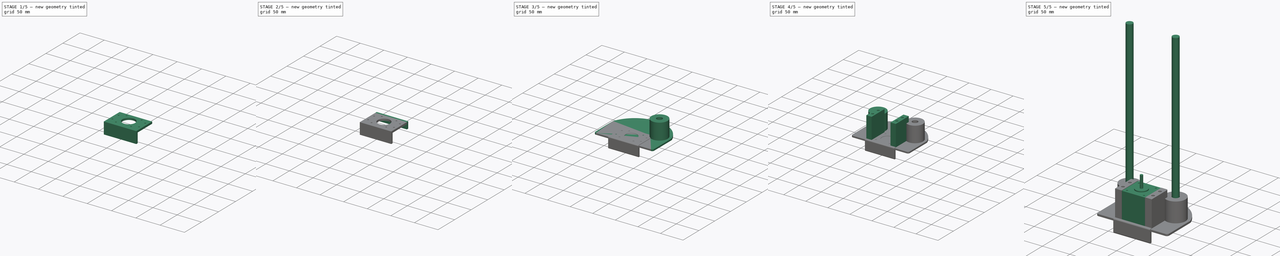
[diagram: build sequence overview — one tinted view per stage of 5, left to right]
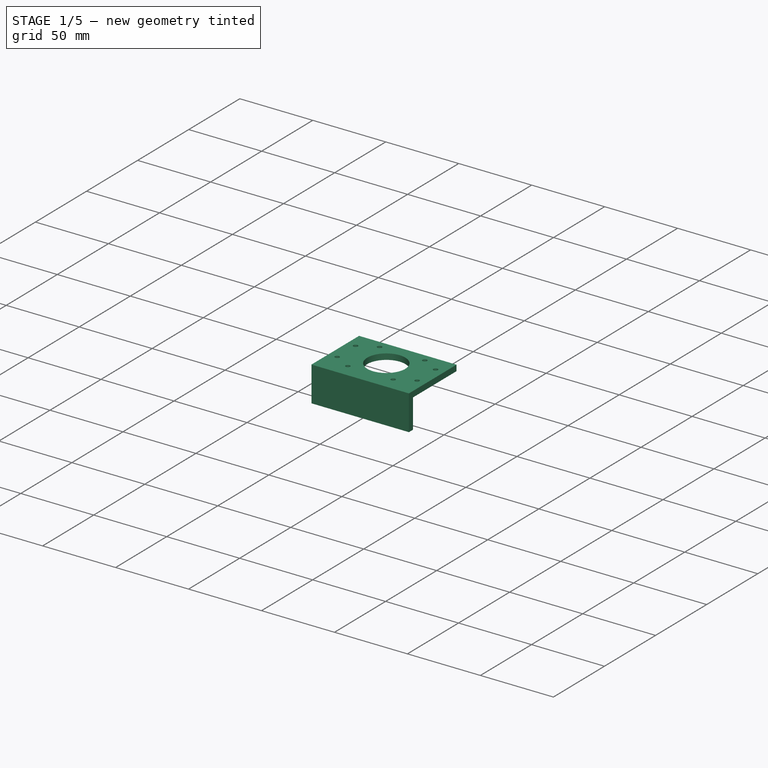
[diagram: stage 1 of 5 — iso view after this stage's code; geometry added in this stage tinted green]
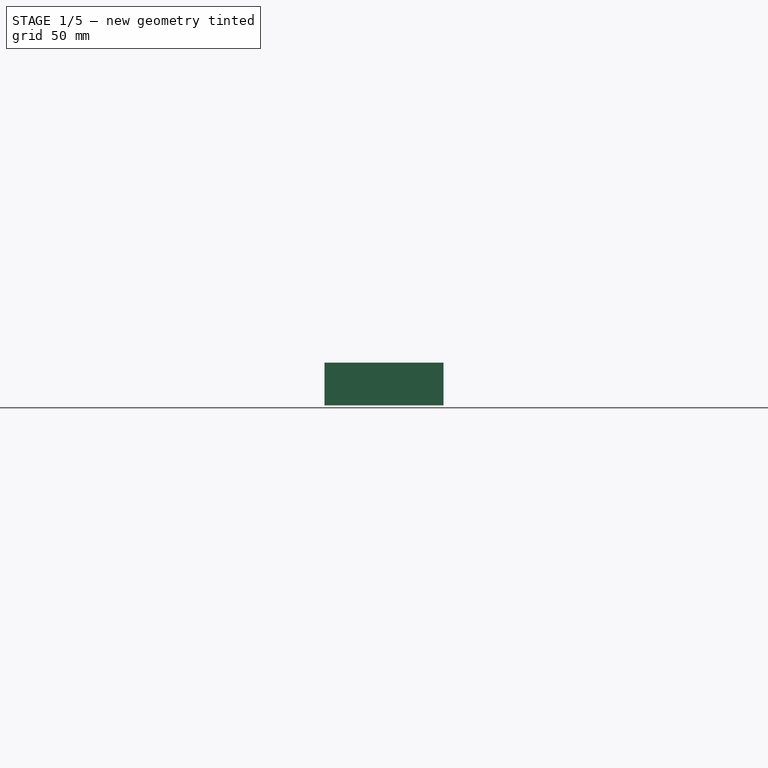
[diagram: stage 1 of 5 — front view after this stage's code; geometry added in this stage tinted green]
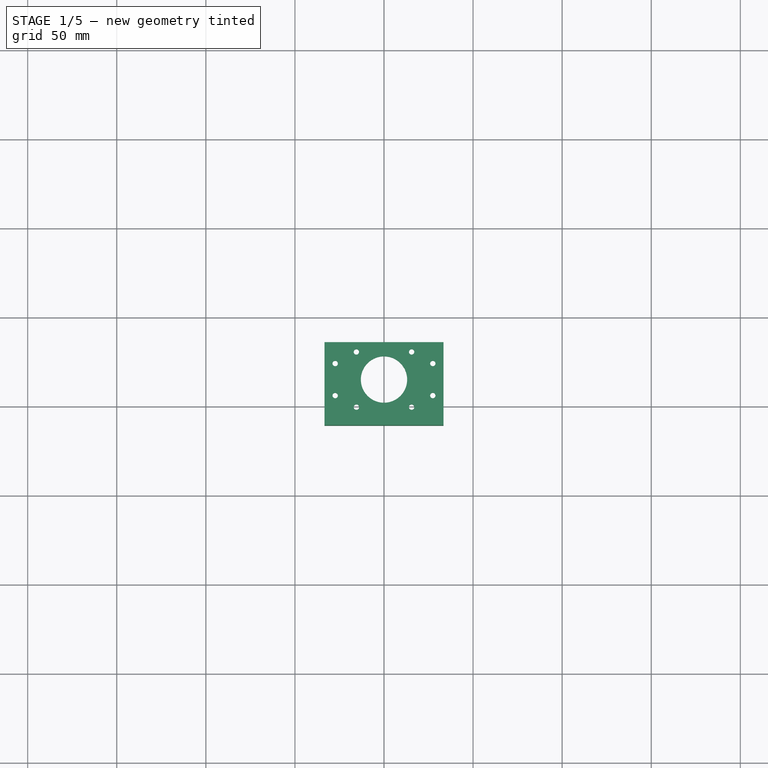
[diagram: stage 1 of 5 — top view after this stage's code; geometry added in this stage tinted green]
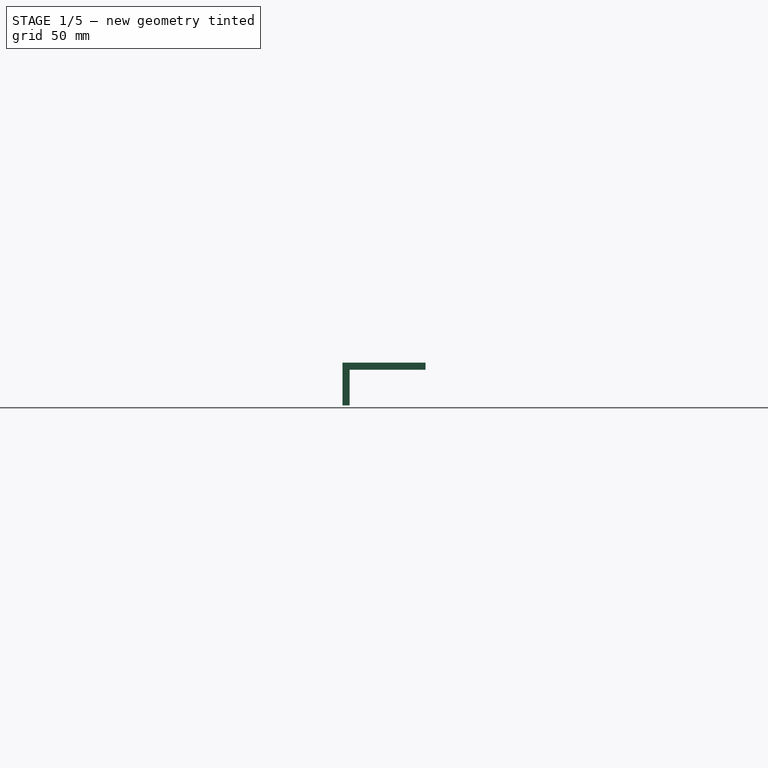
[diagram: stage 1 of 5 — right view after this stage's code; geometry added in this stage tinted green]
FCSTD DOCUMENT  (FreeCAD 0.18R16110 (Git))
Label: jSCARA-V1
License: All rights reserved
LicenseURL: http://en.wikipedia.org/wiki/All_rights_reserved
objects: PartDesign::Pad×10, Sketcher::SketchObject×4, PartDesign::Fillet×3, Part::Cylinder×2, PartDesign::Mirrored×2, PartDesign::Body×2, App::Part×2, Part::FeaturePython×1
note: 34 computed .brp shape members not serialized (recipe doc carries the construction recipe); baked Part::Feature solids carry a one-line shape summary decoded from their .brp

FEATURE [Sketcher::SketchObject] Sketch003
  MapMode = 5
  Support = -> [XY_Plane002]
  sketch-geometry (14):
    g0: Circle CenterX=-27.4 CenterY=-26 CenterZ=0 NormalX=0 NormalY=0 NormalZ=1 AngleXU=0 Radius=1.5
    g1: Circle CenterX=0 CenterY=-35 CenterZ=0 NormalX=0 NormalY=0 NormalZ=1 AngleXU=0 Radius=13
    g2: LineSegment StartX=-33.4 StartY=-14 StartZ=0 EndX=33.4 EndY=-14 EndZ=0
    g3: LineSegment StartX=33.4 StartY=-14 StartZ=0 EndX=33.4 EndY=-56 EndZ=0
    g4: LineSegment StartX=33.4 StartY=-56 StartZ=0 EndX=-33.4 EndY=-56 EndZ=0
    g5: LineSegment StartX=-33.4 StartY=-56 StartZ=0 EndX=-33.4 EndY=-14 EndZ=0
    g6: Circle CenterX=27.4 CenterY=-26 CenterZ=0 NormalX=0 NormalY=0 NormalZ=1 AngleXU=0 Radius=1.5
    g7: Circle CenterX=27.4 CenterY=-44 CenterZ=0 NormalX=0 NormalY=0 NormalZ=1 AngleXU=0 Radius=1.5
    g8: Circle CenterX=-27.4 CenterY=-44 CenterZ=0 NormalX=0 NormalY=0 NormalZ=1 AngleXU=0 Radius=1.5
    g9: LineSegment [constr] StartX=-27.4 StartY=-26 StartZ=0 EndX=-27.4 EndY=-44 EndZ=0
    g10: Circle CenterX=-15.5 CenterY=-50.5 CenterZ=0 NormalX=0 NormalY=0 NormalZ=1 AngleXU=0 Radius=1.5
    g11: Circle CenterX=15.5 CenterY=-50.5 CenterZ=0 NormalX=0 NormalY=0 NormalZ=1 AngleXU=0 Radius=1.5
    g12: Circle CenterX=-15.5 CenterY=-19.5 CenterZ=0 NormalX=0 NormalY=0 NormalZ=1 AngleXU=0 Radius=1.5
    g13: Circle CenterX=15.5 CenterY=-19.5 CenterZ=0 NormalX=0 NormalY=0 NormalZ=1 AngleXU=0 Radius=1.5
  constraints (36):
    c: PointOnObject(g1,g-2)
    c: Radius(g1) = 13
    c: DistanceY(g1,g-1) = 35
    c: Coincident(g2,g3)
    c: Coincident(g3,g4)
    c: Coincident(g4,g5)
    c: Coincident(g5,g2)
    c: Horizontal(g4)
    c: Vertical(g3)
    c: Vertical(g5)
    c: DistanceX(g2,g2) = 66.8
    c: Symmetric(g2,g2,g-2)
    c: DistanceY(g3,g3) = 42
    c: DistanceY(g2,g-1) = 14
    c: Equal(g0,g6) = 3
    c: Symmetric(g6,g0,g-2)
    c: Equal(g0,g8) = 3
    c: Equal(g8,g7) = 3
    c: DistanceY(g1,g6) = 9
    c: DistanceY(g8,g0) = 18
    c: Symmetric(g7,g8,g-2)
    c: Coincident(g9,g0)
    c: Coincident(g9,g8)
    c: Vertical(g9)
    c: Radius(g10) = 1.5
    c: Equal(g10,g11) = 3
    c: Symmetric(g10,g11,g-2)
    c: DistanceX(g10,g11) = 31
    c: DistanceY(g3,g11) = 5.5
    c: Equal(g10,g12) = 3
    c: Symmetric(g12,g13,g-2)
    c: DistanceX(g12,g13) = 31
    c: DistanceY(g10,g12) = 31
    c: Equal(g13,g12)
    c: DistanceX(g4,g8) = 6
    c: Radius(g0) = 1.5
FEATURE [PartDesign::Pad] Pad003
  Length = 4
  Length2 = 100
  Profile = -> Sketch003
  Type = 0
FEATURE [PartDesign::Body] Body  label="Base Plate"
  Group = -> [Sketch,Pad,Sketch001,Fillet,Pad001,Mirrored,Sketch002,Pad002,Mirrored001,Fillet002]
  Origin = -> Origin
  Tip = -> Fillet002
FEATURE [PartDesign::Pad] Pad004
  BaseFeature = -> Pad003
  Length = 0.6
  Length2 = 100
  Profile = -> Pad003 [Face3]
  Type = 0
FEATURE [PartDesign::Pad] Pad005
  BaseFeature = -> Pad004
  Length = 4
  Length2 = 100
  Profile = -> Pad004 [Face19]
  Type = 0
FEATURE [PartDesign::Pad] Pad006
  BaseFeature = -> Pad005
  Length = 20
  Length2 = 100
  Profile = -> Pad005 [Face21]
  Type = 0
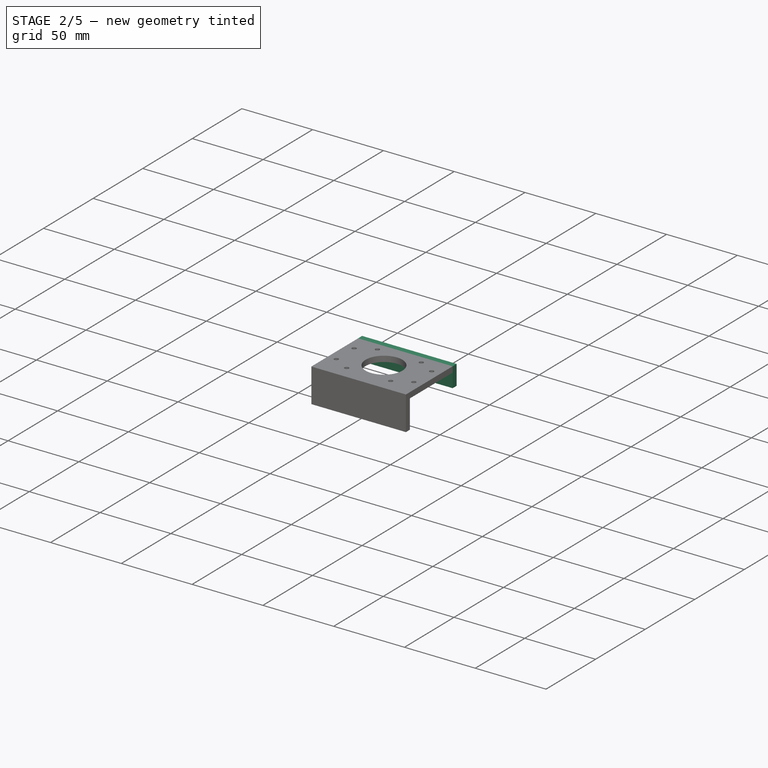
[diagram: stage 2 of 5 — iso view after this stage's code; geometry added in this stage tinted green]
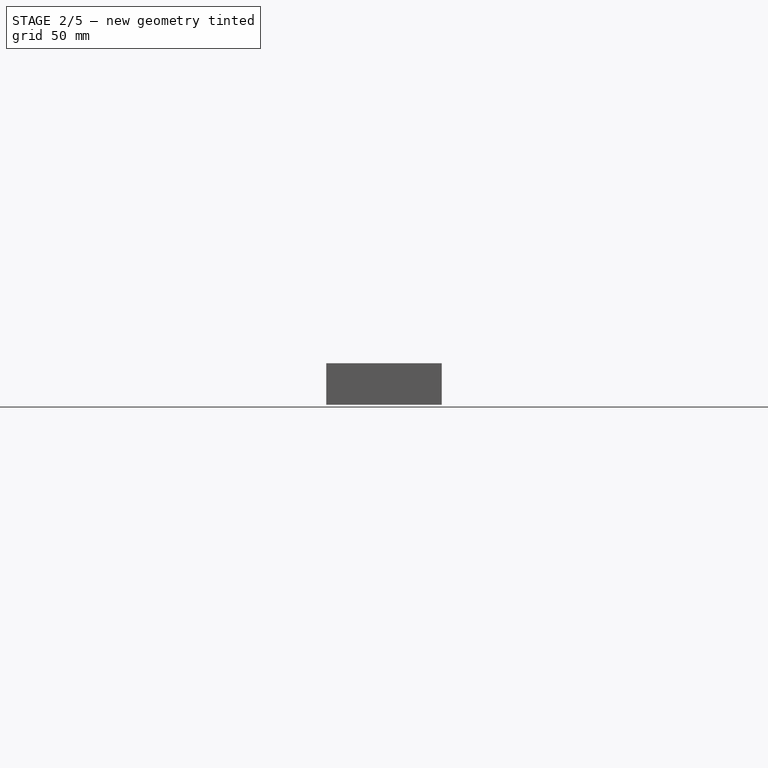
[diagram: stage 2 of 5 — front view after this stage's code; geometry added in this stage tinted green]
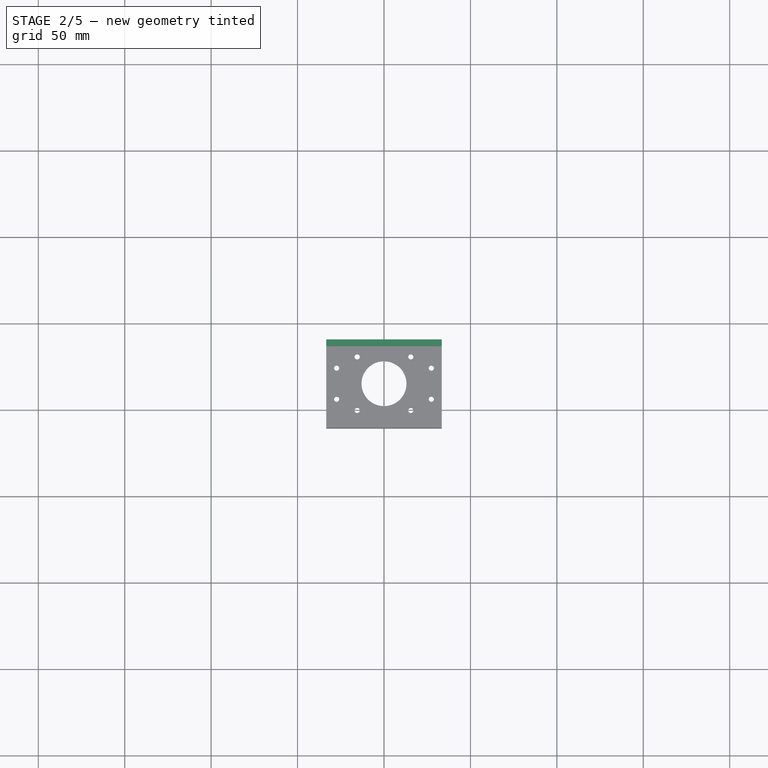
[diagram: stage 2 of 5 — top view after this stage's code; geometry added in this stage tinted green]
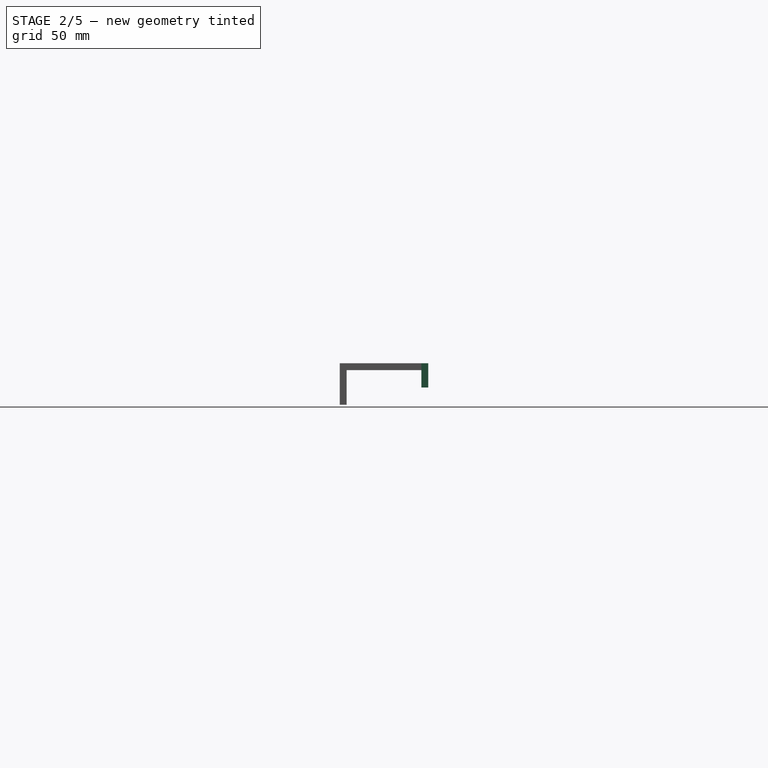
[diagram: stage 2 of 5 — right view after this stage's code; geometry added in this stage tinted green]
FEATURE [PartDesign::Pad] Pad007
  BaseFeature = -> Pad006
  Length = 0.6
  Length2 = 100
  Profile = -> Pad006 [Face1]
  Type = 0
FEATURE [PartDesign::Pad] Pad008
  BaseFeature = -> Pad007
  Length = 4
  Length2 = 100
  Profile = -> Pad007 [Face11]
  Type = 0
FEATURE [PartDesign::Pad] Pad009
  BaseFeature = -> Pad008
  Length = 10
  Length2 = 100
  Profile = -> Pad008 [Face28]
  Type = 0
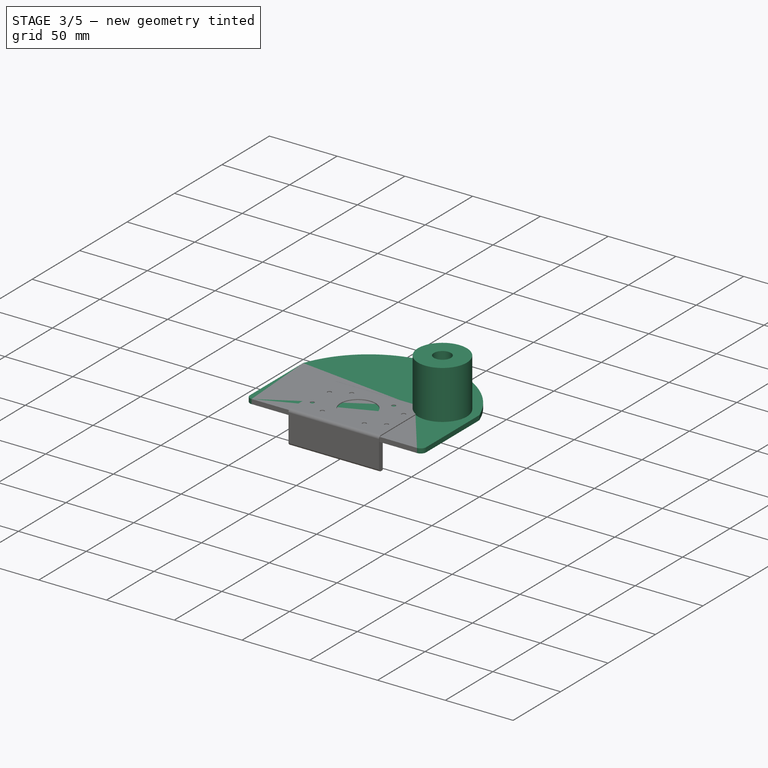
[diagram: stage 3 of 5 — iso view after this stage's code; geometry added in this stage tinted green]
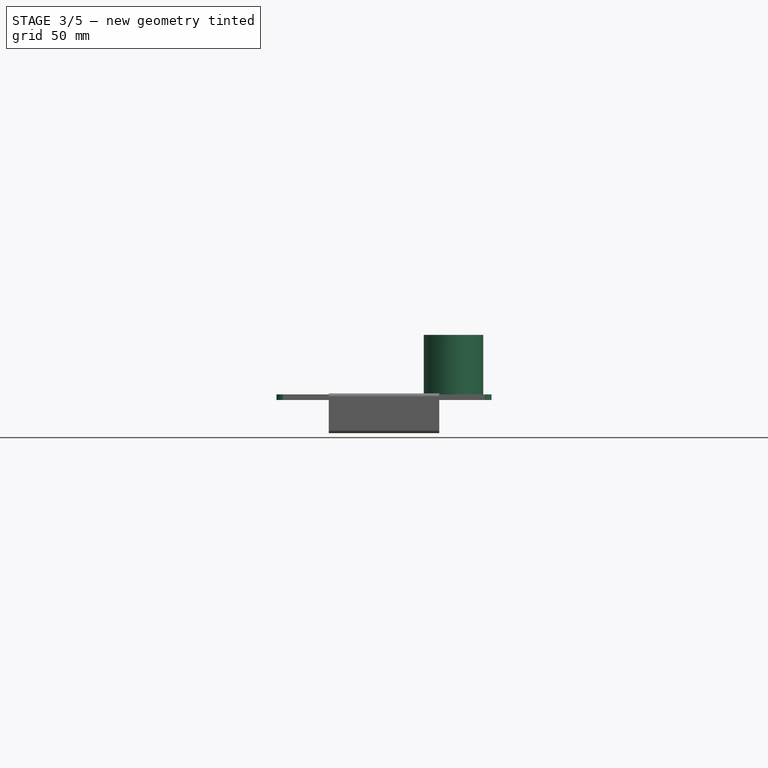
[diagram: stage 3 of 5 — front view after this stage's code; geometry added in this stage tinted green]
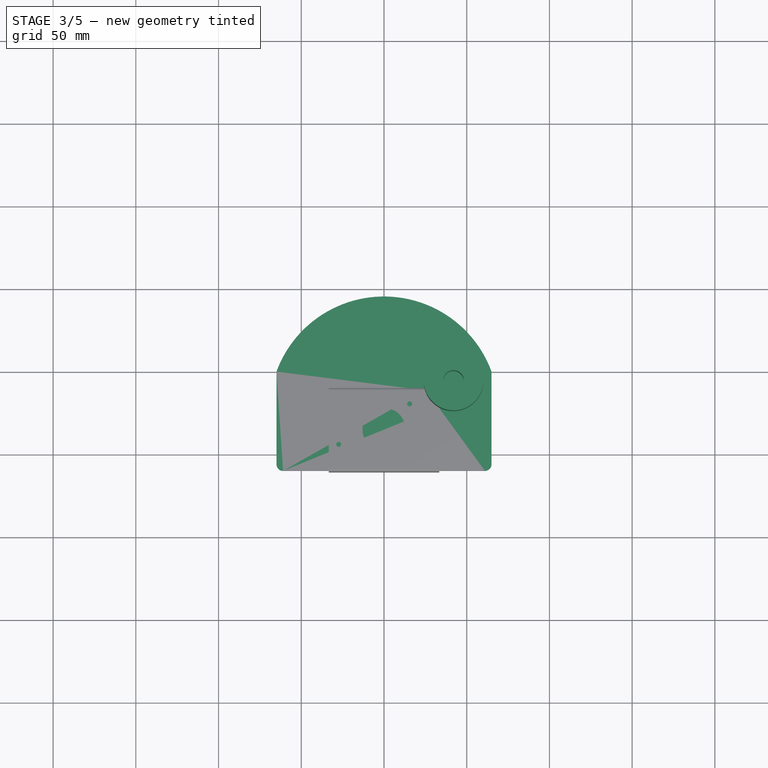
[diagram: stage 3 of 5 — top view after this stage's code; geometry added in this stage tinted green]
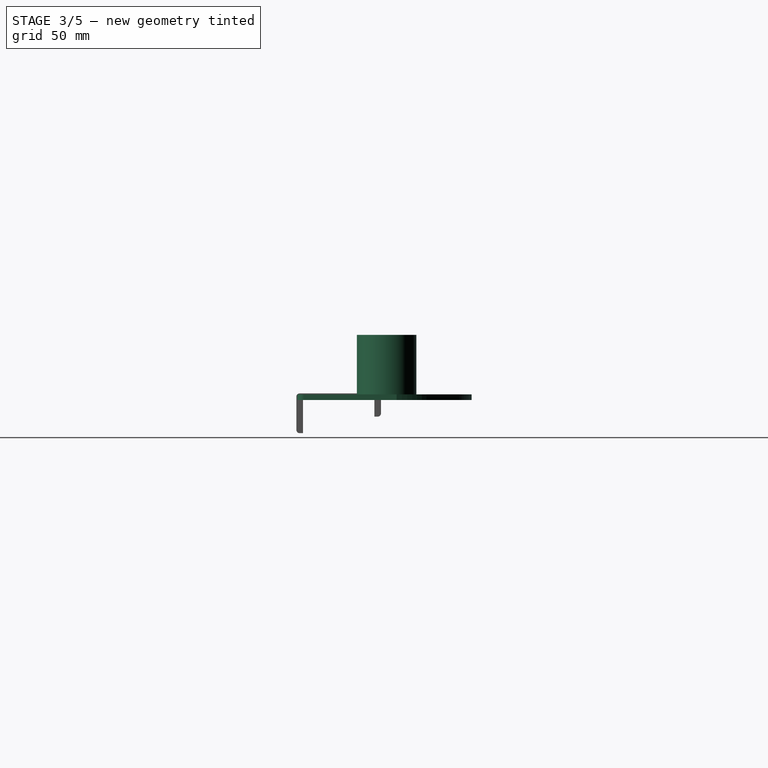
[diagram: stage 3 of 5 — right view after this stage's code; geometry added in this stage tinted green]
FEATURE [Sketcher::SketchObject] Sketch
  MapMode = 5
  Support = -> [XY_Plane]
  sketch-geometry (4):
    g0: LineSegment StartX=-65 StartY=-3e-15 StartZ=0 EndX=-65 EndY=-60 EndZ=0
    g1: LineSegment StartX=-65 StartY=-60 StartZ=0 EndX=65 EndY=-60 EndZ=0
    g2: LineSegment StartX=65 StartY=-60 StartZ=0 EndX=65 EndY=0 EndZ=0
    g3: ArcOfCircle CenterX=-9e-15 CenterY=-23.8163 CenterZ=0 NormalX=0 NormalY=0 NormalZ=1 AngleXU=0 Radius=69.2258 StartAngle=0.351214 EndAngle=2.79038
  constraints (11):
    c: Coincident(g0,g1)
    c: Coincident(g1,g2)
    c: Vertical(g2)
    c: Vertical(g0)
    c: Symmetric(g1,g0,g-2)
    c: DistanceX(g1,g1) = 130
    c: Coincident(g3,g2)
    c: Coincident(g3,g0)
    c: Equal(g0,g2)
    c: DistanceY(g2,g2) = 60
    c: PointOnObject(g2,g-1)
FEATURE [PartDesign::Pad] Pad  label="Base"
  Length = 3.4
  Length2 = 100
  Profile = -> Sketch
  Type = 0
FEATURE [Sketcher::SketchObject] Sketch001
  MapMode = 5
  Placement = pos=(0,0,3.4) rot=(0,0,1;0rad)
  Support = -> [Pad]
  sketch-geometry (2):
    g0: Circle CenterX=42 CenterY=-6 CenterZ=0 NormalX=0 NormalY=0 NormalZ=1 AngleXU=0 Radius=6.25
    g1: Circle CenterX=42 CenterY=-6 CenterZ=0 NormalX=0 NormalY=0 NormalZ=1 AngleXU=0 Radius=18
  constraints (5):
    c: Radius(g0) = 6.25
    c: Coincident(g1,g0)
    c: Radius(g1) = 18
    c: DistanceY(g0,g-1) = 6
    c: DistanceX(g-1,g0) = 42
FEATURE [PartDesign::Fillet] Fillet
  Base = -> Pad [Edge5,Edge2]
  BaseFeature = -> Pad
  Radius = 4
FEATURE [PartDesign::Pad] Pad001  label="Rod Holder R"
  BaseFeature = -> Fillet
  Length = 36
  Length2 = 100
  Profile = -> Sketch001
  Type = 0
FEATURE [PartDesign::Fillet] Fillet003
  Base = -> Pad009 [Edge83,Edge65,Edge75,Edge87]
  BaseFeature = -> Pad009
  Radius = 2
FEATURE [PartDesign::Body] Body001  label="Stepper Retainer"
  Group = -> [Sketch003,Pad003,Pad004,Pad005,Pad006,Pad007,Pad008,Pad009,Fillet003]
  Origin = -> Origin002
  Placement = pos=(0,0,52) rot=(0,0,1;0rad)
  Tip = -> Fillet003
FEATURE [App::Part] Part  label="Base Assembly"
  Group = -> [Cylinder001,Cylinder,Body,b_NEMASteppper__42x48__001_,Body001]
  Origin = -> Origin001
FEATURE [App::Part] Part001  label="Z "
  Origin = -> Origin003
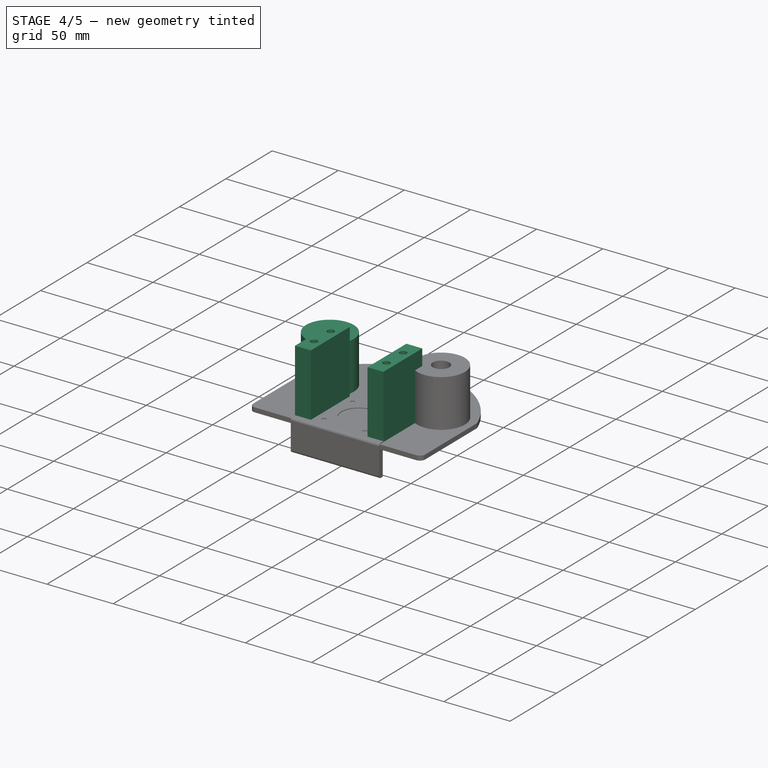
[diagram: stage 4 of 5 — iso view after this stage's code; geometry added in this stage tinted green]
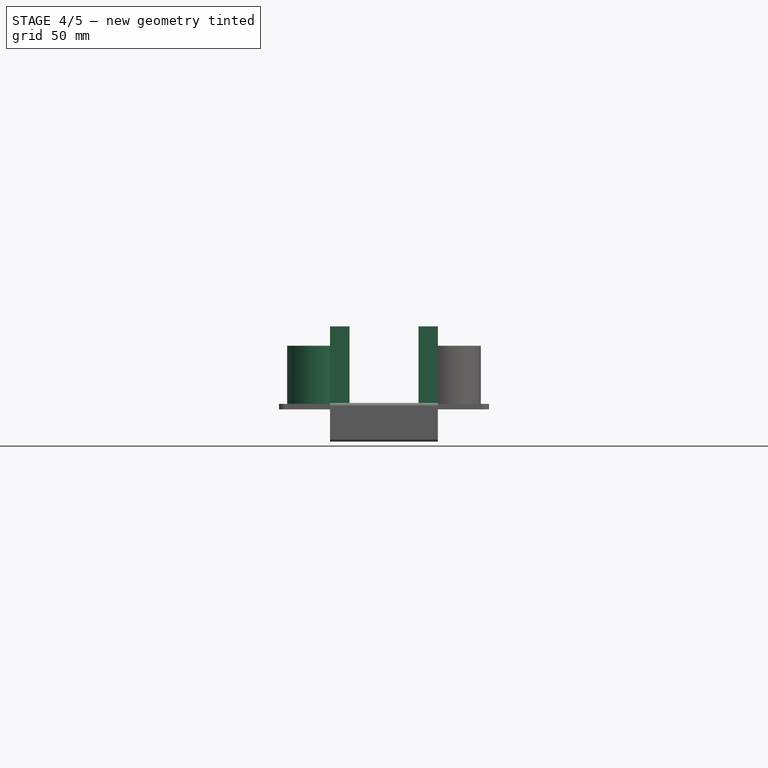
[diagram: stage 4 of 5 — front view after this stage's code; geometry added in this stage tinted green]
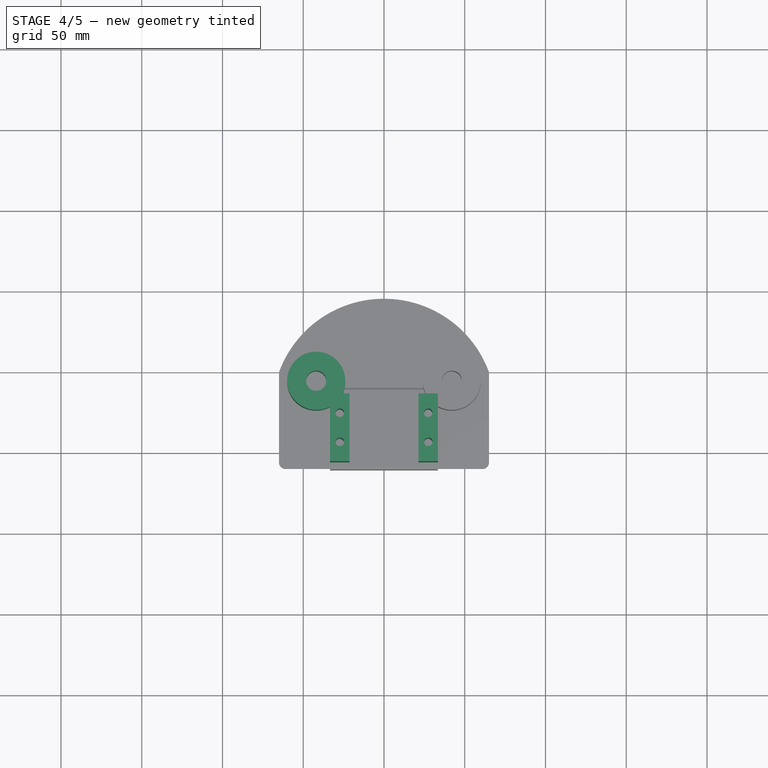
[diagram: stage 4 of 5 — top view after this stage's code; geometry added in this stage tinted green]
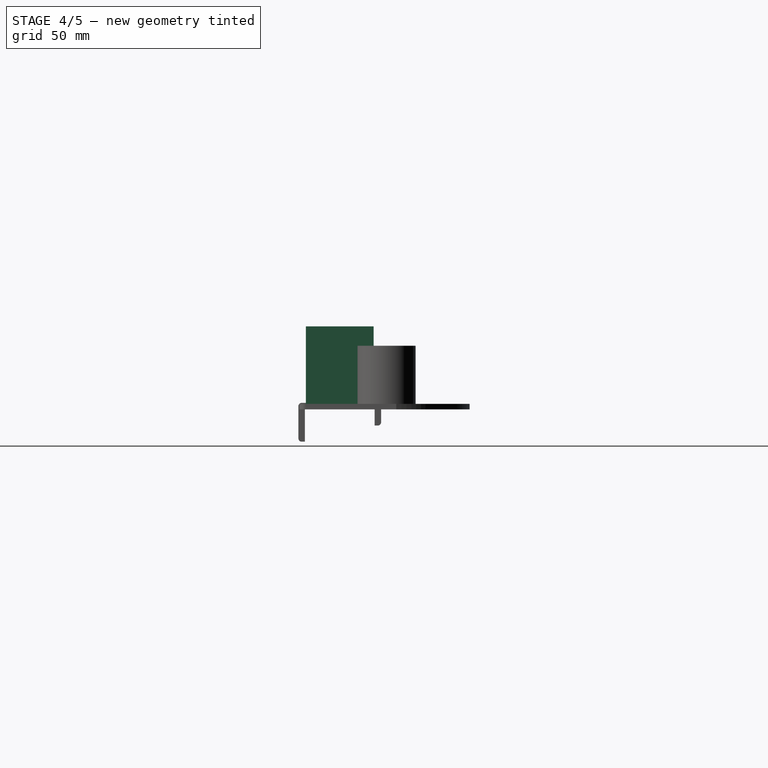
[diagram: stage 4 of 5 — right view after this stage's code; geometry added in this stage tinted green]
FEATURE [PartDesign::Mirrored] Mirrored  label="Rod Holder L"
  BaseFeature = -> Pad001
  MirrorPlane = -> YZ_Plane
  Originals = -> [Pad001]
FEATURE [Sketcher::SketchObject] Sketch002
  MapMode = 5
  Placement = pos=(0,0,3.4) rot=(0,0,1;0rad)
  Support = -> [Mirrored]
  sketch-geometry (7):
    g0: LineSegment StartX=-21.4 StartY=-56 StartZ=0 EndX=-21.4 EndY=-14 EndZ=0
    g1: LineSegment StartX=-21.4 StartY=-14 StartZ=0 EndX=-33.4 EndY=-14 EndZ=0
    g2: LineSegment StartX=-33.4 StartY=-14 StartZ=0 EndX=-33.4 EndY=-56 EndZ=0
    g3: LineSegment StartX=-33.4 StartY=-56 StartZ=0 EndX=-21.4 EndY=-56 EndZ=0
    g4: Circle CenterX=-27.4 CenterY=-26 CenterZ=0 NormalX=0 NormalY=0 NormalZ=1 AngleXU=0 Radius=2.65
    g5: Circle CenterX=-27.4 CenterY=-44 CenterZ=0 NormalX=0 NormalY=0 NormalZ=1 AngleXU=0 Radius=2.65
    g6: LineSegment [constr] StartX=-27.4 StartY=-14 StartZ=0 EndX=-27.4 EndY=-56 EndZ=0
  constraints (21):
    c: Vertical(g0)
    c: Coincident(g0,g1)
    c: Horizontal(g1)
    c: Coincident(g1,g2)
    c: Vertical(g2)
    c: Coincident(g2,g3)
    c: Coincident(g3,g0)
    c: Horizontal(g3)
    c: DistanceY(g0,g-1) = 14
    c: DistanceY(g0,g0) = 42
    c: DistanceX(g1,g1) = 12
    c: DistanceX(g0,g-1) = 21.4
    c: DistanceY(g4,g1) = 12
    c: Equal(g4,g5) = 3
    c: PointOnObject(g6,g1)
    c: Symmetric(g0,g2,g6)
    c: PointOnObject(g5,g6)
    c: PointOnObject(g4,g6)
    c: PointOnObject(g6,g3)
    c: DistanceY(g2,g5) = 12
    c: Diameter(g4) = 5.3
FEATURE [PartDesign::Pad] Pad002
  BaseFeature = -> Mirrored
  Length = 48
  Length2 = 100
  Profile = -> Sketch002
  Type = 0
FEATURE [PartDesign::Mirrored] Mirrored001
  BaseFeature = -> Pad002
  MirrorPlane = -> Sketch002 [V_Axis]
  Originals = -> [Pad002]
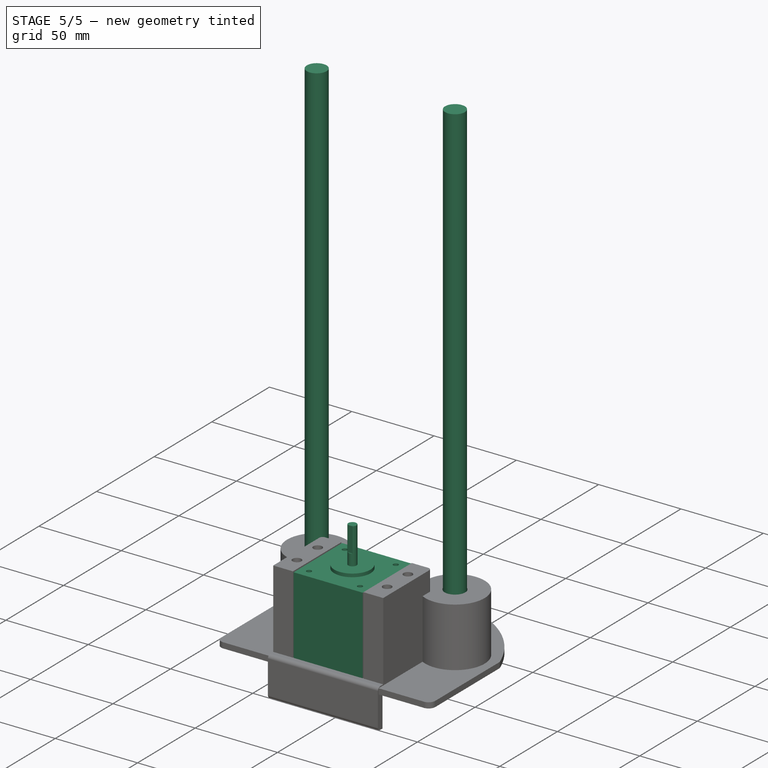
[diagram: stage 5 of 5 — iso view after this stage's code; geometry added in this stage tinted green]
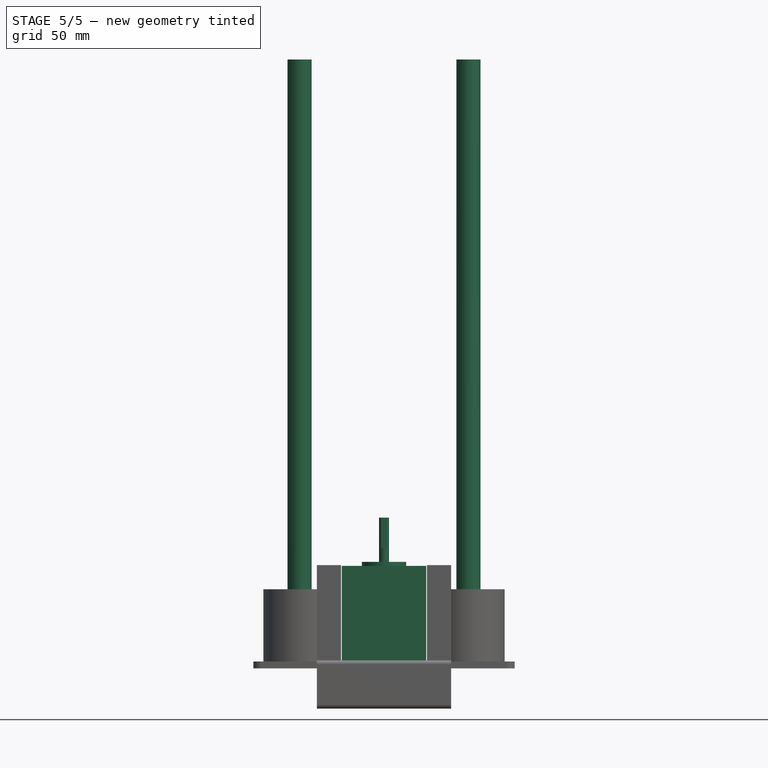
[diagram: stage 5 of 5 — front view after this stage's code; geometry added in this stage tinted green]
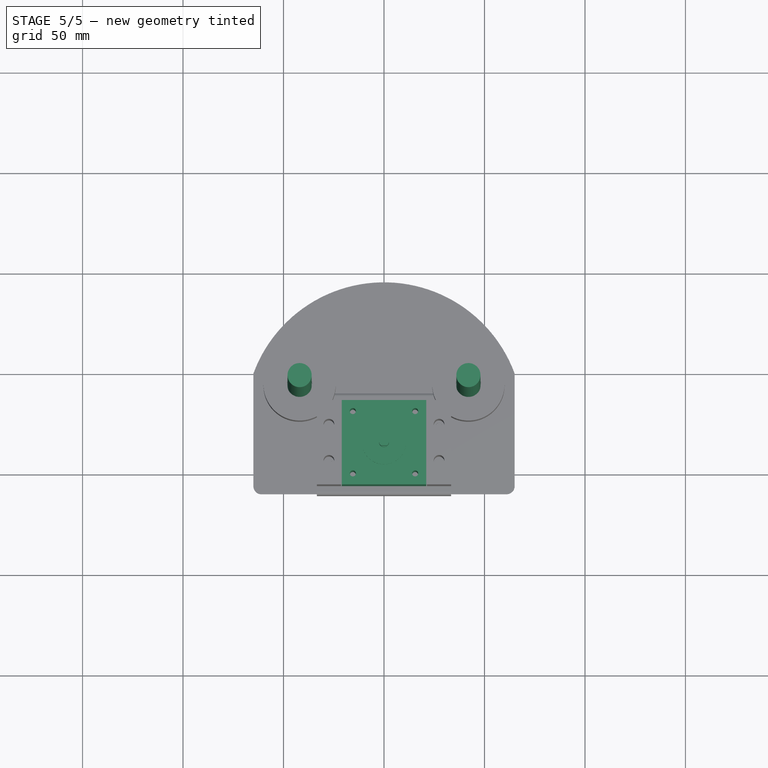
[diagram: stage 5 of 5 — top view after this stage's code; geometry added in this stage tinted green]
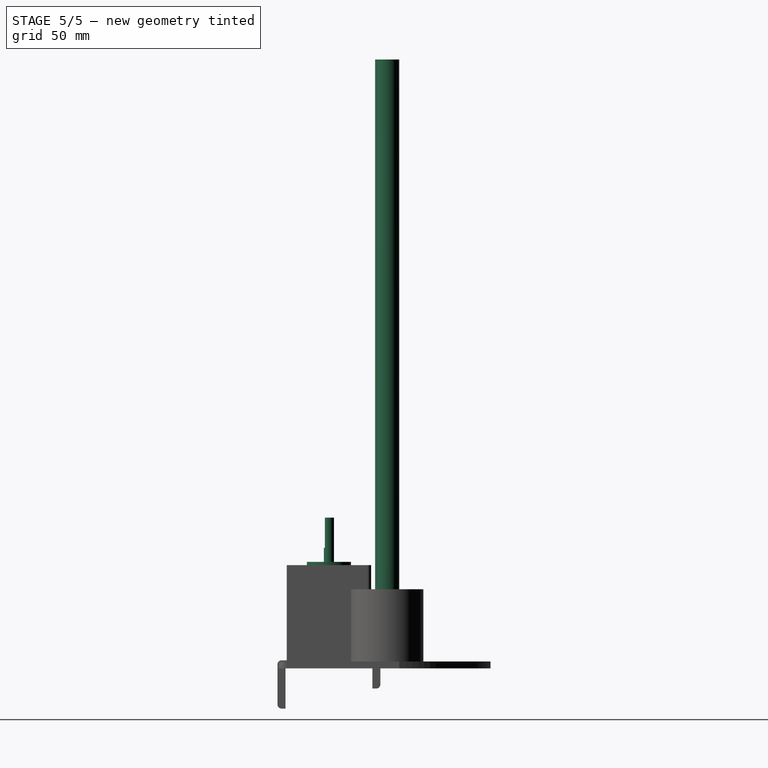
[diagram: stage 5 of 5 — right view after this stage's code; geometry added in this stage tinted green]
FEATURE [Part::Cylinder] Cylinder  label="R Rail"
  Angle = 360
  AttacherType = Attacher::AttachEngine3D
  Height = 300
  Placement = pos=(42,-6,3) rot=(0,0,1;0rad)
  Radius = 6
FEATURE [Part::FeaturePython] b_NEMASteppper__42x48__001_  label="NEMASteppper (42x48)_001"  # a2plus imported part (geometry in sourceFile) (typed FeaturePython)
  Placement = pos=(0,-35,3) rot=(0,0,1;0rad)
  a2p_Version = V0.1
  fixedPosition = true
  sourceFile = .\NEMASteppper (42x48).FCStd
  subassemblyImport = false
  timeLastImport = 1.55797e+09
  updateColors = true
FEATURE [Part::Cylinder] Cylinder001  label="L Rail"
  Angle = 360
  AttacherType = Attacher::AttachEngine3D
  Height = 300
  Placement = pos=(-42,-6,3) rot=(0,0,1;0rad)
  Radius = 6
FEATURE [PartDesign::Fillet] Fillet002
  Base = -> Mirrored001 [Edge50,Edge37]
  BaseFeature = -> Mirrored001
  Radius = 2
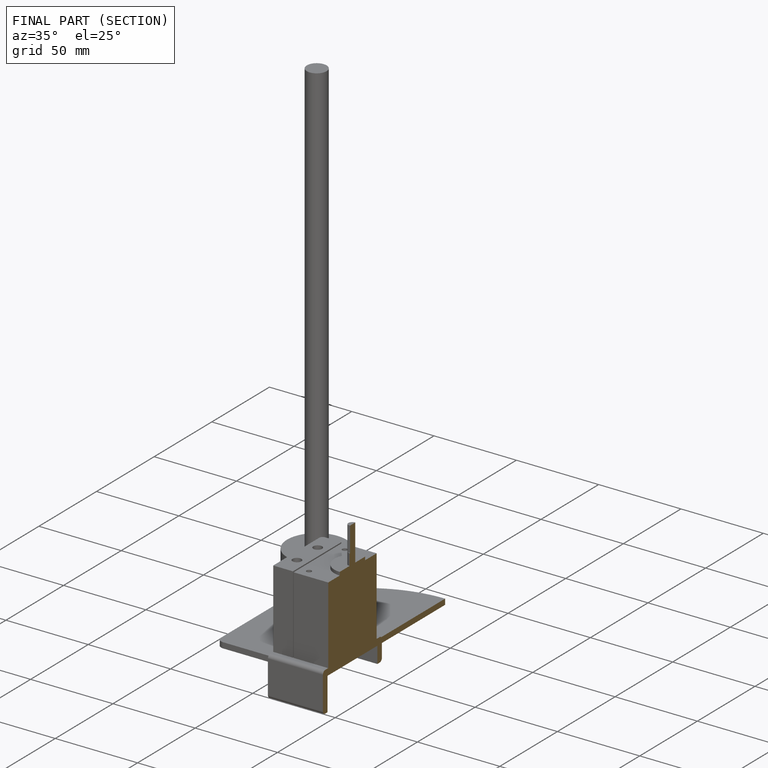
[diagram: finished part — half-section view (interior)]
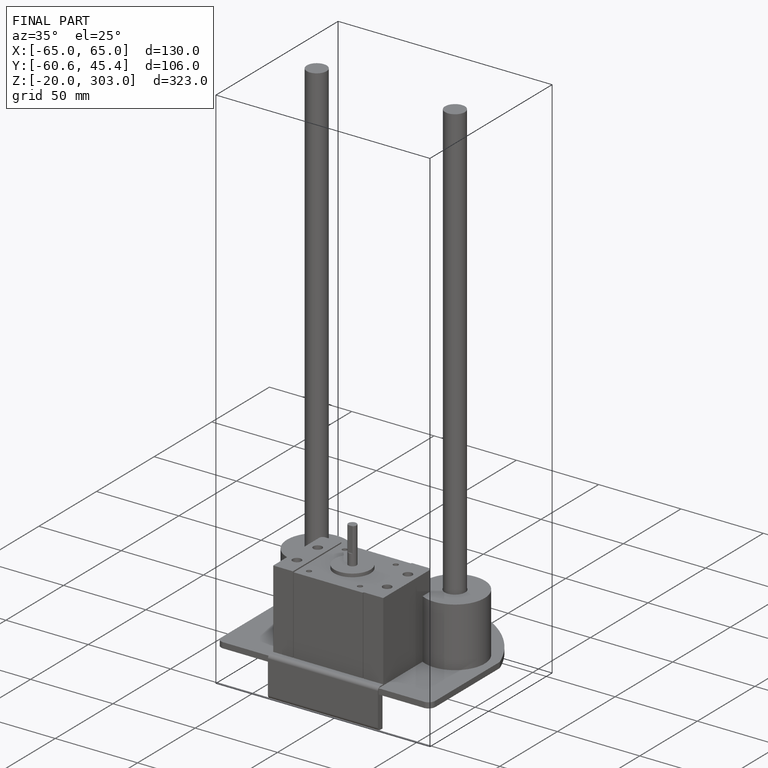
[diagram: finished part — iso view with bounding-box wireframe]
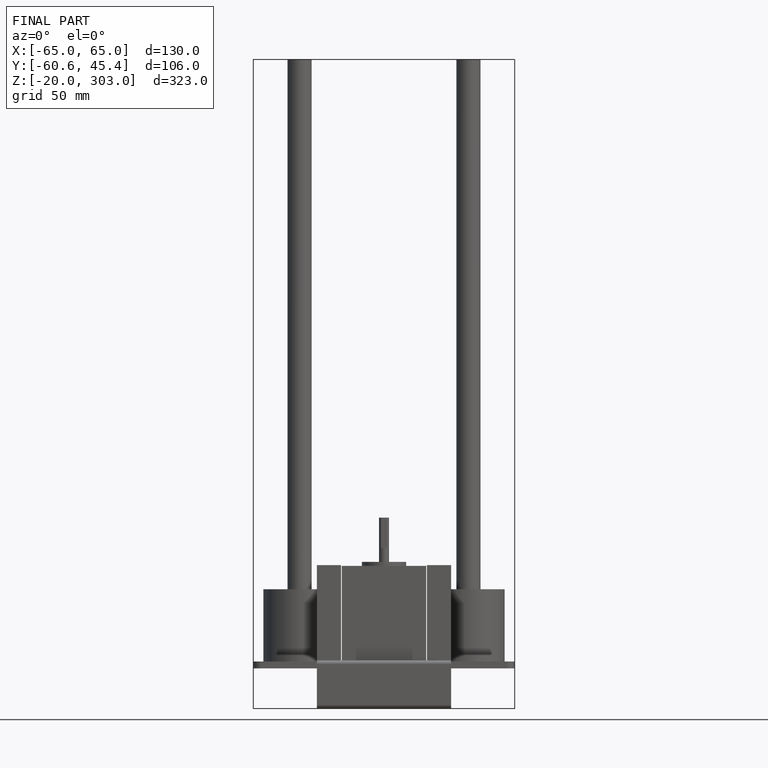
[diagram: finished part — front view with bounding-box wireframe]
